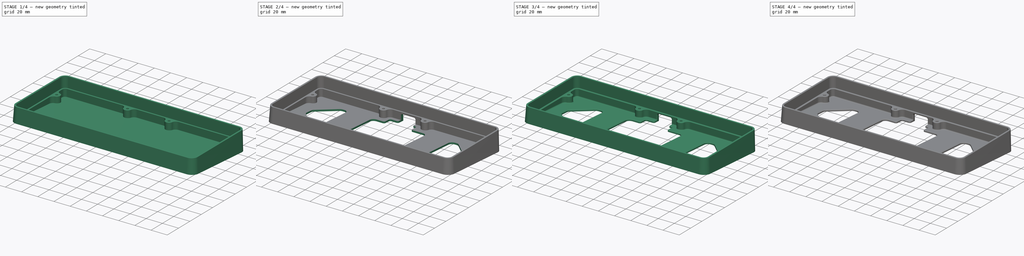
[diagram: build sequence overview — one tinted view per stage of 4, left to right]
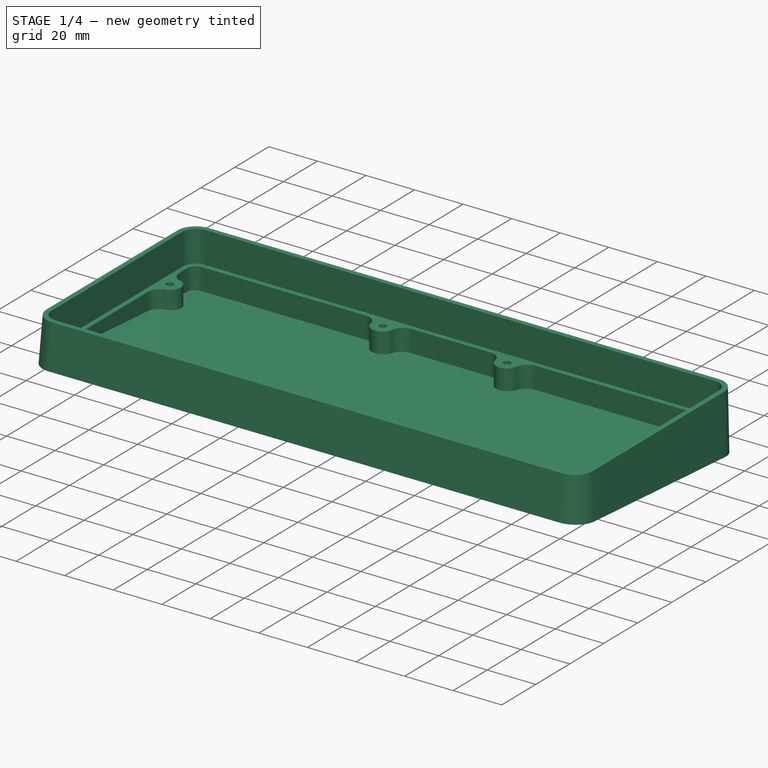
[diagram: stage 1 of 4 — iso view after this stage's code; geometry added in this stage tinted green]
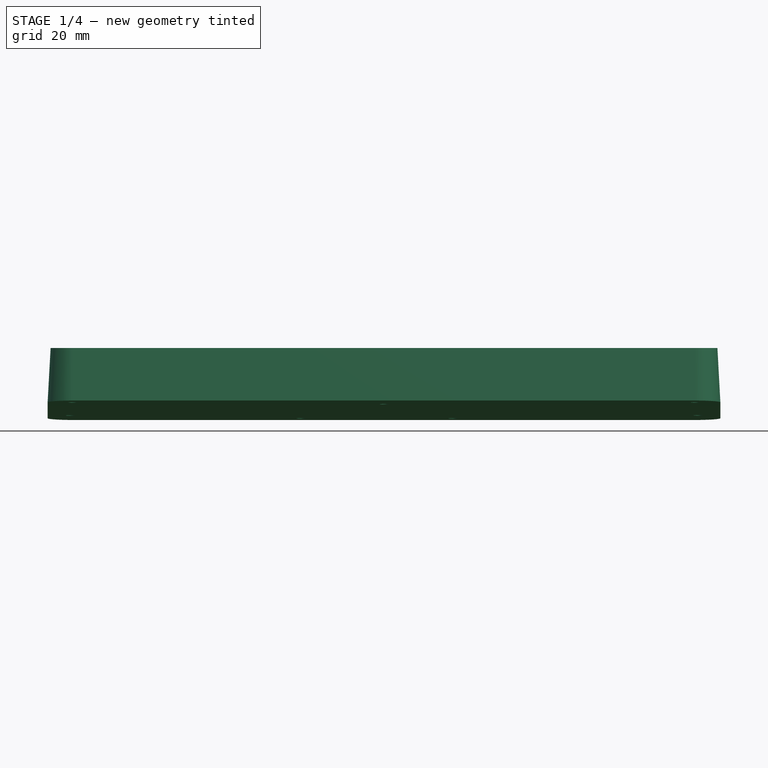
[diagram: stage 1 of 4 — front view after this stage's code; geometry added in this stage tinted green]
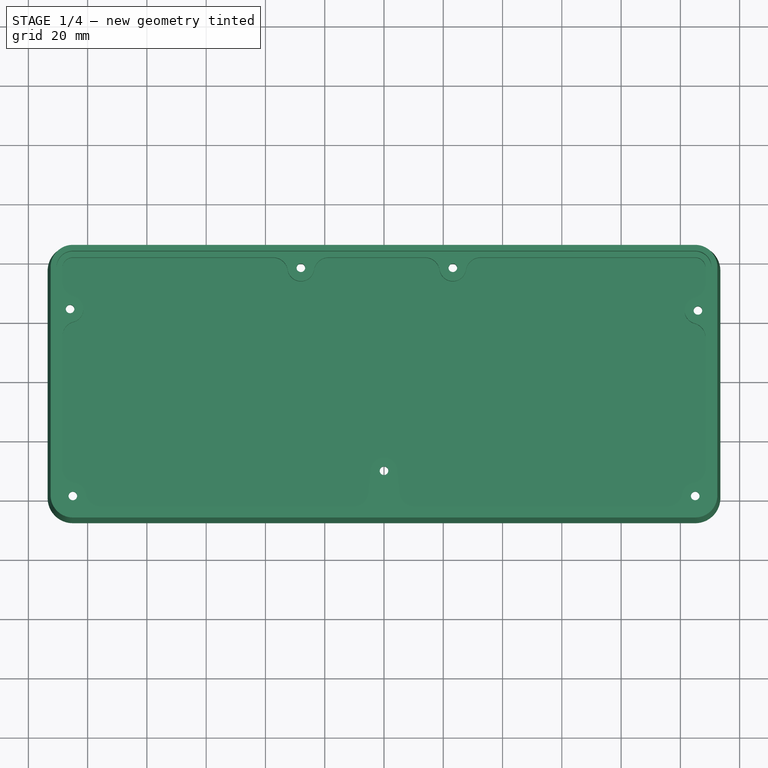
[diagram: stage 1 of 4 — top view after this stage's code; geometry added in this stage tinted green]
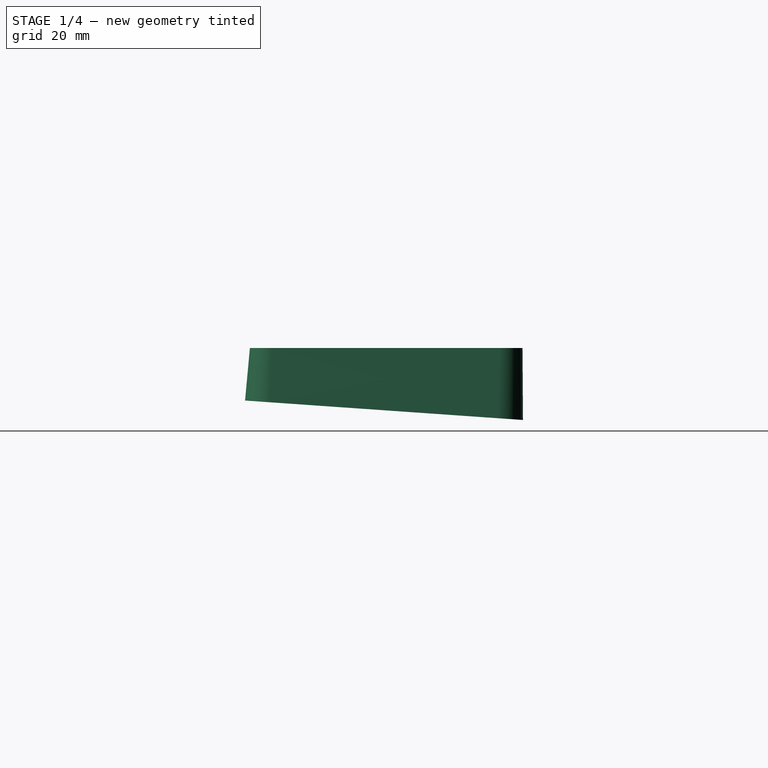
[diagram: stage 1 of 4 — right view after this stage's code; geometry added in this stage tinted green]
FCSTD DOCUMENT  (FreeCAD 0.20R)
Label: case
License: All rights reserved
LicenseURL: http://en.wikipedia.org/wiki/All_rights_reserved
objects: Sketcher::SketchObject×7, PartDesign::Fillet×7, PartDesign::Pocket×4, PartDesign::AdditiveLoft×1, PartDesign::Hole×1, PartDesign::Chamfer×1, PartDesign::Body×1
note: 36 computed .brp shape members not serialized (recipe doc carries the construction recipe); baked Part::Feature solids carry a one-line shape summary decoded from their .brp

FEATURE [Sketcher::SketchObject] Sketch
  AttachmentOffset = pos=(0,-0.75,0) rot=(1,0,0;-0.069813rad)
  FullyConstrained = false
  MapMode = 5
  Placement = pos=(0,-0.75,0) rot=(1,0,0;6.21337rad)
  Support = -> [XY_Plane]
  sketch-geometry (8):
    g0: LineSegment StartX=-105 StartY=47 StartZ=0 EndX=105 EndY=47 EndZ=0
    g1: ArcOfCircle CenterX=105 CenterY=38.5 CenterZ=0 NormalX=0 NormalY=0 NormalZ=1 AngleXU=0 Radius=8.5 StartAngle=0 EndAngle=1.5708
    g2: LineSegment StartX=113.5 StartY=38.5 StartZ=0 EndX=113.5 EndY=-38.5 EndZ=0
    g3: ArcOfCircle CenterX=105 CenterY=-38.5 CenterZ=0 NormalX=0 NormalY=0 NormalZ=1 AngleXU=0 Radius=8.5 StartAngle=4.71239 EndAngle=6.28319
    g4: LineSegment StartX=-105 StartY=-47 StartZ=0 EndX=105 EndY=-47 EndZ=0
    g5: ArcOfCircle CenterX=-105 CenterY=-38.5 CenterZ=0 NormalX=0 NormalY=0 NormalZ=1 AngleXU=0 Radius=8.5 StartAngle=3.14159 EndAngle=4.71239
    g6: LineSegment StartX=-113.5 StartY=38.5 StartZ=0 EndX=-113.5 EndY=-38.5 EndZ=0
    g7: ArcOfCircle CenterX=-105 CenterY=38.5 CenterZ=0 NormalX=0 NormalY=0 NormalZ=1 AngleXU=0 Radius=8.5 StartAngle=1.5708 EndAngle=3.14159
  constraints (8):
    c: Coincident(g5,g6)
    c: Coincident(g6,g7)
    c: Coincident(g4,g5)
    c: Coincident(g0,g7)
    c: Coincident(g3,g4)
    c: Coincident(g0,g1)
    c: Coincident(g2,g3)
    c: Coincident(g1,g2)
FEATURE [Sketcher::SketchObject] Sketch001
  AttachmentOffset = pos=(0,0,21) rot=(0,0,1;0rad)
  FullyConstrained = false
  MapMode = 5
  Placement = pos=(0,0,21) rot=(0,0,1;0rad)
  Support = -> [XY_Plane]
  sketch-geometry (8):
    g0: LineSegment StartX=-105 StartY=46 StartZ=0 EndX=105 EndY=46 EndZ=0
    g1: ArcOfCircle CenterX=-105 CenterY=38.5 CenterZ=0 NormalX=0 NormalY=0 NormalZ=1 AngleXU=0 Radius=7.5 StartAngle=1.5708 EndAngle=3.14159
    g2: LineSegment StartX=-112.5 StartY=38.5 StartZ=0 EndX=-112.5 EndY=-38.5 EndZ=0
    g3: ArcOfCircle CenterX=-105 CenterY=-38.5 CenterZ=0 NormalX=0 NormalY=0 NormalZ=1 AngleXU=0 Radius=7.5 StartAngle=3.14159 EndAngle=4.71239
    g4: LineSegment StartX=-105 StartY=-46 StartZ=0 EndX=105 EndY=-46 EndZ=0
    g5: ArcOfCircle CenterX=105 CenterY=-38.5 CenterZ=0 NormalX=0 NormalY=0 NormalZ=1 AngleXU=0 Radius=7.5 StartAngle=4.71239 EndAngle=6.28319
    g6: LineSegment StartX=112.5 StartY=38.5 StartZ=0 EndX=112.5 EndY=-38.5 EndZ=0
    g7: ArcOfCircle CenterX=105 CenterY=38.5 CenterZ=0 NormalX=0 NormalY=0 NormalZ=1 AngleXU=0 Radius=7.5 StartAngle=0 EndAngle=1.5708
  constraints (8):
    c: Coincident(g2,g3)
    c: Coincident(g1,g2)
    c: Coincident(g3,g4)
    c: Coincident(g0,g1)
    c: Coincident(g4,g5)
    c: Coincident(g0,g7)
    c: Coincident(g5,g6)
    c: Coincident(g6,g7)
FEATURE [PartDesign::AdditiveLoft] AdditiveLoft
  Closed = true
  Profile = -> Sketch
  Ruled = true
  Sections = -> [Sketch001]
FEATURE [Sketcher::SketchObject] Sketch002
  FullyConstrained = false
  MapMode = 5
  Placement = pos=(0,0,21) rot=(0,0,1;0rad)
  Support = -> [AdditiveLoft]
  sketch-geometry (8):
    g0: LineSegment StartX=-105 StartY=44 StartZ=0 EndX=105 EndY=44 EndZ=0
    g1: ArcOfCircle CenterX=105 CenterY=38.5 CenterZ=0 NormalX=0 NormalY=0 NormalZ=1 AngleXU=0 Radius=5.5 StartAngle=0 EndAngle=1.5708
    g2: LineSegment StartX=110.5 StartY=38.5 StartZ=0 EndX=110.5 EndY=-38.5 EndZ=0
    g3: ArcOfCircle CenterX=105 CenterY=-38.5 CenterZ=0 NormalX=0 NormalY=0 NormalZ=1 AngleXU=0 Radius=5.5 StartAngle=4.71239 EndAngle=6.28319
    g4: LineSegment StartX=-105 StartY=-44 StartZ=0 EndX=105 EndY=-44 EndZ=0
    g5: ArcOfCircle CenterX=-105 CenterY=-38.5 CenterZ=0 NormalX=0 NormalY=0 NormalZ=1 AngleXU=0 Radius=5.5 StartAngle=3.14159 EndAngle=4.71239
    g6: LineSegment StartX=-110.5 StartY=38.5 StartZ=0 EndX=-110.5 EndY=-38.5 EndZ=0
    g7: ArcOfCircle CenterX=-105 CenterY=38.5 CenterZ=0 NormalX=0 NormalY=0 NormalZ=1 AngleXU=0 Radius=5.5 StartAngle=1.5708 EndAngle=3.14159
  constraints (8):
    c: Coincident(g5,g6)
    c: Coincident(g6,g7)
    c: Coincident(g4,g5)
    c: Coincident(g0,g7)
    c: Coincident(g3,g4)
    c: Coincident(g0,g1)
    c: Coincident(g2,g3)
    c: Coincident(g1,g2)
FEATURE [PartDesign::Pocket] Pocket
  BaseFeature = -> AdditiveLoft
  Direction = (0,0,-1)
  Length = 13
  Length2 = 5
  Profile = -> Sketch002
  ReferenceAxis = -> Sketch002 [N_Axis]
  Type = 0
FEATURE [Sketcher::SketchObject] Sketch003
  FullyConstrained = false
  MapMode = 5
  Placement = pos=(0,0,8) rot=(0,0,1;0rad)
  Support = -> [Pocket]
  sketch-geometry (34):
    g0: ArcOfCircle CenterX=-105 CenterY=38.5 CenterZ=0 NormalX=0 NormalY=0 NormalZ=1 AngleXU=0 Radius=3.5 StartAngle=1.5708 EndAngle=3.14159
    g1: ArcOfCircle CenterX=105 CenterY=38.5 CenterZ=0 NormalX=0 NormalY=0 NormalZ=1 AngleXU=0 Radius=3.5 StartAngle=0 EndAngle=1.5708
    g2: ArcOfCircle CenterX=-18.6668 CenterY=37 CenterZ=0 NormalX=0 NormalY=0 NormalZ=1 AngleXU=0 Radius=5 StartAngle=1.5708 EndAngle=2.98303
    g3: LineSegment StartX=-105 StartY=42 StartZ=0 EndX=-37.4285 EndY=42 EndZ=0
    g4: ArcOfCircle CenterX=-28.0476 CenterY=38.5 CenterZ=0 NormalX=0 NormalY=0 NormalZ=1 AngleXU=0 Radius=4.5 StartAngle=3.30015 EndAngle=6.12463
    g5: ArcOfCircle CenterX=-37.4285 CenterY=37 CenterZ=0 NormalX=0 NormalY=0 NormalZ=1 AngleXU=0 Radius=5 StartAngle=0.158558 EndAngle=1.5708
    g6: LineSegment StartX=32.6001 StartY=42 StartZ=0 EndX=105 EndY=42 EndZ=0
    g7: ArcOfCircle CenterX=32.6001 CenterY=37 CenterZ=0 NormalX=0 NormalY=0 NormalZ=1 AngleXU=0 Radius=5 StartAngle=1.5708 EndAngle=2.98303
    g8: ArcOfCircle CenterX=23.2193 CenterY=38.5 CenterZ=0 NormalX=0 NormalY=0 NormalZ=1 AngleXU=0 Radius=4.5 StartAngle=3.30015 EndAngle=6.12463
    g9: LineSegment StartX=-18.6668 StartY=42 StartZ=0 EndX=13.8384 EndY=42 EndZ=0
    g10: ArcOfCircle CenterX=13.8384 CenterY=37 CenterZ=0 NormalX=0 NormalY=0 NormalZ=1 AngleXU=0 Radius=5 StartAngle=0.158558 EndAngle=1.5708
    g11: LineSegment StartX=108.5 StartY=38.5 StartZ=0 EndX=108.5 EndY=33.2941 EndZ=0
    g12: ArcOfCircle CenterX=103.5 CenterY=33.2941 CenterZ=0 NormalX=0 NormalY=0 NormalZ=1 AngleXU=0 Radius=5 StartAngle=4.97068 EndAngle=6.28319
    g13: ArcOfCircle CenterX=105.927 CenterY=24.1093 CenterZ=0 NormalX=0 NormalY=0 NormalZ=1 AngleXU=0 Radius=4.5 StartAngle=1.82909 EndAngle=4.4541
    g14: ArcOfCircle CenterX=103.5 CenterY=14.9244 CenterZ=0 NormalX=0 NormalY=0 NormalZ=1 AngleXU=0 Radius=5 StartAngle=0 EndAngle=1.3125
    g15: ArcOfCircle CenterX=95.6192 CenterY=-37 CenterZ=0 NormalX=0 NormalY=0 NormalZ=1 AngleXU=0 Radius=5 StartAngle=4.71239 EndAngle=6.12463
    g16: ArcOfCircle CenterX=105 CenterY=-38.5 CenterZ=0 NormalX=0 NormalY=0 NormalZ=1 AngleXU=0 Radius=4.5 StartAngle=1.72935 EndAngle=2.98303
    g17: LineSegment StartX=108.5 StartY=14.9244 StartZ=0 EndX=108.5 EndY=-29.1192 EndZ=0
    g18: ArcOfCircle CenterX=103.5 CenterY=-29.1192 CenterZ=0 NormalX=0 NormalY=0 NormalZ=1 AngleXU=0 Radius=5 StartAngle=4.87095 EndAngle=6.28319
    g19: ArcOfCircle CenterX=-95.6192 CenterY=-37 CenterZ=0 NormalX=0 NormalY=0 NormalZ=1 AngleXU=0 Radius=5 StartAngle=3.30015 EndAngle=4.71239
    g20: ArcOfCircle CenterX=-105 CenterY=-38.5 CenterZ=0 NormalX=0 NormalY=0 NormalZ=1 AngleXU=0 Radius=4.5 StartAngle=0.158558 EndAngle=1.41224
    g21: ArcOfCircle CenterX=-103.5 CenterY=-29.1192 CenterZ=0 NormalX=0 NormalY=0 NormalZ=1 AngleXU=0 Radius=5 StartAngle=3.14159 EndAngle=4.55383
    g22: LineSegment StartX=-108.5 StartY=38.5 StartZ=0 EndX=-108.5 EndY=33.7906 EndZ=0
    g23: ArcOfCircle CenterX=-103.5 CenterY=33.7906 CenterZ=0 NormalX=0 NormalY=0 NormalZ=1 AngleXU=0 Radius=5 StartAngle=3.14159 EndAngle=4.4541
    g24: ArcOfCircle CenterX=-105.927 CenterY=24.6058 CenterZ=0 NormalX=0 NormalY=0 NormalZ=1 AngleXU=0 Radius=4.5 StartAngle=4.97068 EndAngle=7.59569
    g25: LineSegment StartX=-108.5 StartY=15.4209 StartZ=0 EndX=-108.5 EndY=-29.1192 EndZ=0
    g26: ArcOfCircle CenterX=-103.5 CenterY=15.4209 CenterZ=0 NormalX=0 NormalY=0 NormalZ=1 AngleXU=0 Radius=5 StartAngle=1.82909 EndAngle=3.14159
    g27: LineSegment StartX=10.2881 StartY=-42 StartZ=0 EndX=95.6192 EndY=-42 EndZ=0
    g28: ArcOfCircle CenterX=10.2881 CenterY=-37 CenterZ=0 NormalX=0 NormalY=0 NormalZ=1 AngleXU=0 Radius=5 StartAngle=3.24631 EndAngle=4.71239
    g29: LineSegment StartX=-95.6192 StartY=-42 StartZ=0 EndX=-10.2881 EndY=-42 EndZ=0
    g30: ArcOfCircle CenterX=-10.2881 CenterY=-37 CenterZ=0 NormalX=0 NormalY=0 NormalZ=1 AngleXU=0 Radius=5 StartAngle=4.71239 EndAngle=6.17847
    g31: ArcOfCircle CenterX=-3e-16 CenterY=-30 CenterZ=0 NormalX=0 NormalY=0 NormalZ=1 AngleXU=0 Radius=4.5 StartAngle=0.10472 EndAngle=3.03687
    g32: LineSegment StartX=-4.47535 StartY=-29.5296 StartZ=0 EndX=-5.31545 EndY=-37.5226 EndZ=0
    g33: LineSegment StartX=4.47535 StartY=-29.5296 StartZ=0 EndX=5.31545 EndY=-37.5226 EndZ=0
  constraints (34):
    c: Coincident(g21,g25)
    c: Coincident(g25,g26)
    c: Coincident(g22,g23)
    c: Coincident(g0,g22)
    c: Coincident(g0,g3)
    c: Coincident(g24,g26)
    c: Coincident(g23,g24)
    c: Coincident(g20,g21)
    c: Coincident(g19,g20)
    c: Coincident(g19,g29)
    c: Coincident(g3,g5)
    c: Coincident(g4,g5)
    c: Coincident(g2,g4)
    c: Coincident(g2,g9)
    c: Coincident(g29,g30)
    c: Coincident(g30,g32)
    c: Coincident(g31,g32)
    c: Coincident(g31,g33)
    c: Coincident(g28,g33)
    c: Coincident(g27,g28)
    c: Coincident(g9,g10)
    c: Coincident(g8,g10)
    c: Coincident(g7,g8)
    c: Coincident(g6,g7)
    c: Coincident(g15,g27)
    c: Coincident(g15,g16)
    c: Coincident(g16,g18)
    c: Coincident(g13,g14)
    c: Coincident(g12,g13)
    c: Coincident(g1,g6)
    c: Coincident(g17,g18)
    c: Coincident(g14,g17)
    c: Coincident(g11,g12)
    c: Coincident(g1,g11)
FEATURE [PartDesign::Pocket] Pocket001
  BaseFeature = -> Pocket
  Direction = (0,0,-1)
  Length = 0
  Length2 = 5
  Offset = -2
  Profile = -> Sketch003
  ReferenceAxis = -> Sketch003 [N_Axis]
  Type = 3
  UpToFace = -> Pocket [Face1]
FEATURE [Sketcher::SketchObject] Sketch004
  FullyConstrained = false
  MapMode = 5
  Placement = pos=(0,0,8) rot=(0,0,1;0rad)
  Support = -> [Pocket]
  sketch-geometry (7):
    g0: Circle CenterX=-105 CenterY=-38.5 CenterZ=0 NormalX=0 NormalY=0 NormalZ=-1 AngleXU=0 Radius=1.5
    g1: Circle CenterX=105 CenterY=-38.5 CenterZ=0 NormalX=0 NormalY=0 NormalZ=-1 AngleXU=0 Radius=1.5
    g2: Circle CenterX=-28.0476 CenterY=38.5 CenterZ=0 NormalX=0 NormalY=0 NormalZ=-1 AngleXU=0 Radius=1.5
    g3: Circle CenterX=23.2193 CenterY=38.5 CenterZ=0 NormalX=0 NormalY=0 NormalZ=-1 AngleXU=0 Radius=1.5
    g4: Circle CenterX=-105.927 CenterY=24.6058 CenterZ=0 NormalX=0 NormalY=0 NormalZ=-1 AngleXU=0 Radius=1.5
    g5: Circle CenterX=105.927 CenterY=24.1093 CenterZ=0 NormalX=0 NormalY=0 NormalZ=-1 AngleXU=0 Radius=1.5
    g6: Circle CenterX=0 CenterY=-30 CenterZ=0 NormalX=0 NormalY=0 NormalZ=-1 AngleXU=0 Radius=1.5
FEATURE [PartDesign::Hole] Hole
  BaseFeature = -> Pocket001
  CustomThreadClearance = 0
  Depth = 25
  DepthType = 0
  Diameter = 2.9
  DrillForDepth = false
  DrillPoint = 1
  DrillPointAngle = 118
  HoleCutCountersinkAngle = 90
  HoleCutCustomValues = false
  HoleCutDepth = 0
  HoleCutDiameter = 6.1
  HoleCutType = 0
  ModelThread = false
  Profile = -> Sketch004
  Tapered = false
  TaperedAngle = 90
  ThreadClass = 0
  ThreadDepth = 25
  ThreadDepthType = 0
  ThreadDirection = 0
  ThreadFit = 0
  ThreadSize = 8
  ThreadType = 1
  Threaded = false
  UseCustomThreadClearance = false
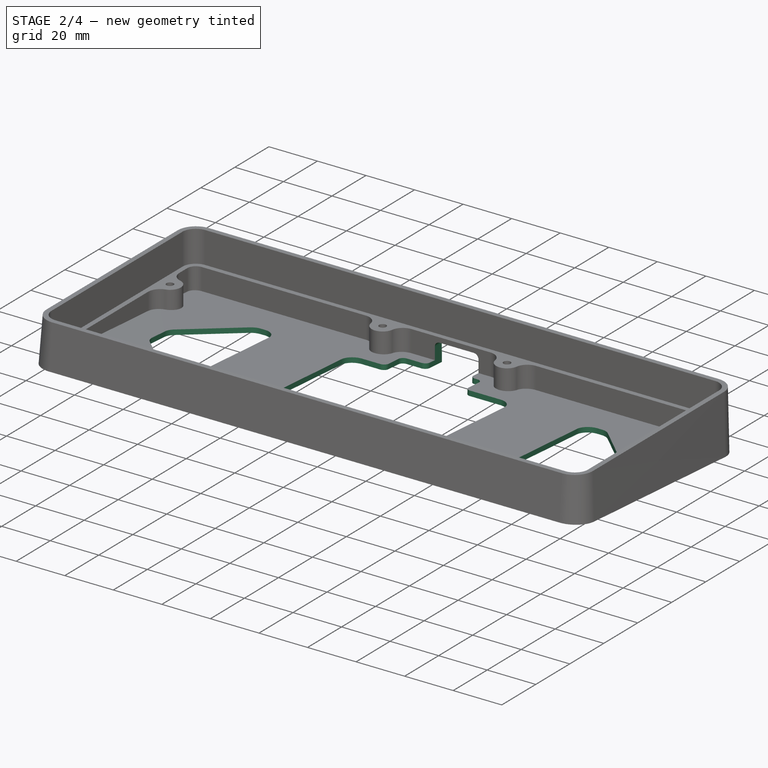
[diagram: stage 2 of 4 — iso view after this stage's code; geometry added in this stage tinted green]
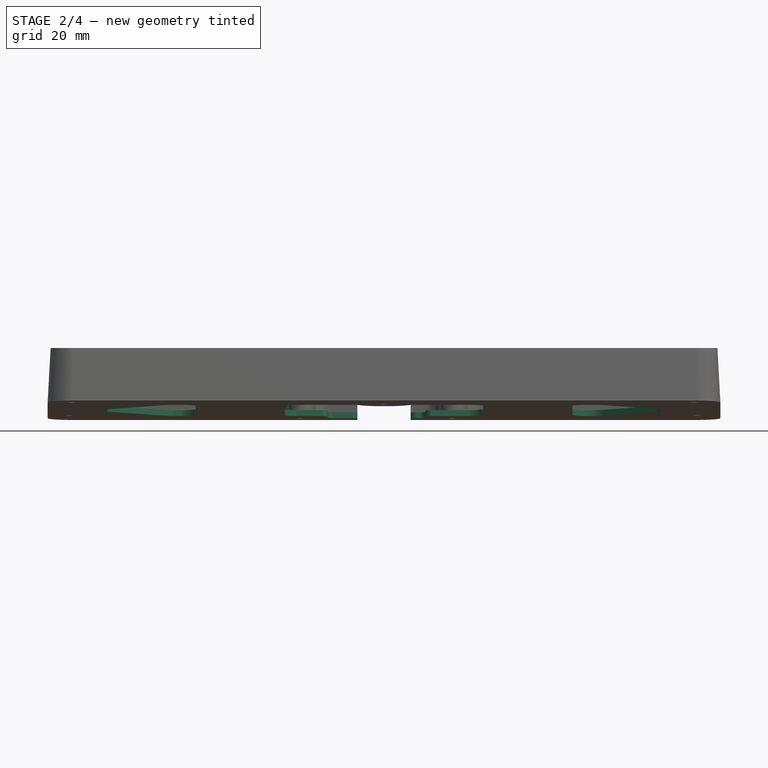
[diagram: stage 2 of 4 — front view after this stage's code; geometry added in this stage tinted green]
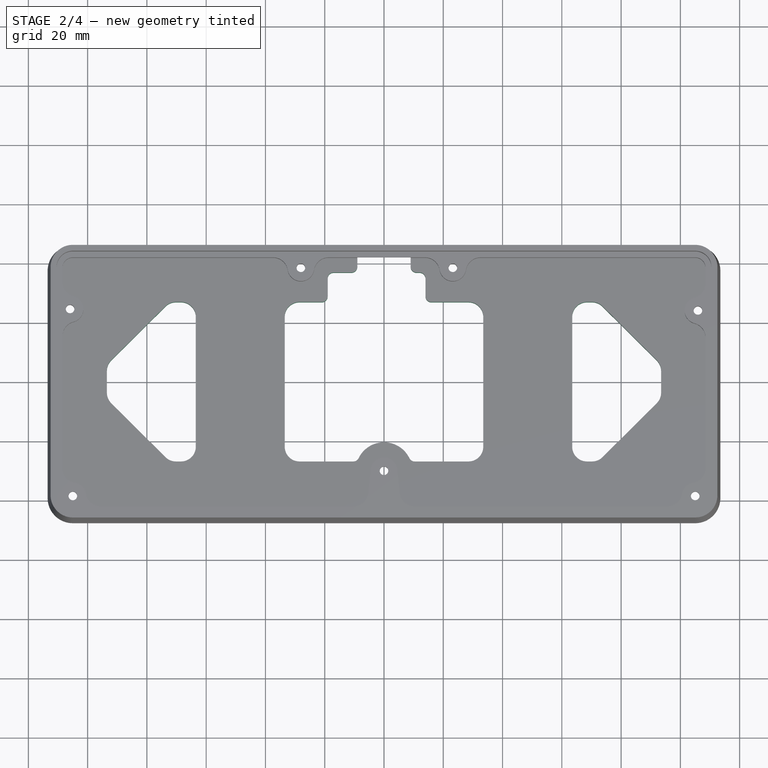
[diagram: stage 2 of 4 — top view after this stage's code; geometry added in this stage tinted green]
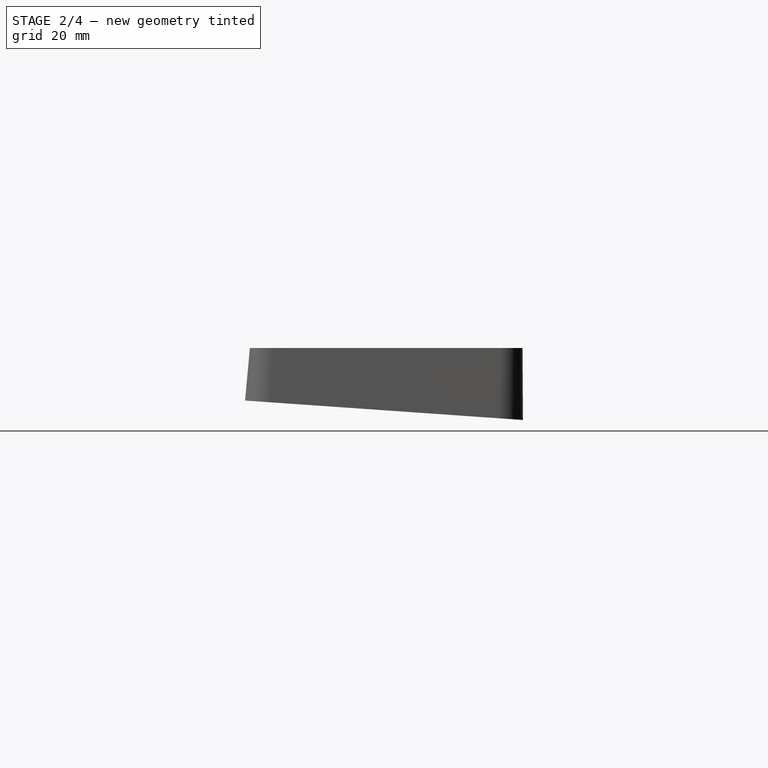
[diagram: stage 2 of 4 — right view after this stage's code; geometry added in this stage tinted green]
FEATURE [Sketcher::SketchObject] Sketch005
  FullyConstrained = false
  MapMode = 5
  Placement = pos=(0,-0.00364947,-0.0521899) rot=(1,0,0;3.07178rad)
  Support = -> [Pocket]
  sketch-geometry (4):
    g0: LineSegment StartX=9 StartY=-17.2928 StartZ=0 EndX=9 EndY=-57.2928 EndZ=0
    g1: LineSegment StartX=-9 StartY=-57.2928 StartZ=0 EndX=9 EndY=-57.2928 EndZ=0
    g2: LineSegment StartX=-9 StartY=-17.2928 StartZ=0 EndX=9 EndY=-17.2928 EndZ=0
    g3: LineSegment StartX=-9 StartY=-57.2928 StartZ=0 EndX=-9 EndY=-17.2928 EndZ=0
  constraints (4):
    c: Coincident(g1,g3)
    c: Coincident(g2,g3)
    c: Coincident(g0,g1)
    c: Coincident(g0,g2)
FEATURE [PartDesign::Pocket] Pocket002
  BaseFeature = -> Hole
  Direction = (0,0.0697565,0.997564)
  Length = 0
  Length2 = 5
  Offset = -2
  Profile = -> Sketch005
  ReferenceAxis = -> Sketch005 [N_Axis]
  Type = 3
  UpToFace = -> Hole [Face18]
FEATURE [Sketcher::SketchObject] Sketch006
  FullyConstrained = false
  MapMode = 5
  Placement = pos=(0,0.135524,1.93808) rot=(-1,0,0;0.069813rad)
  Support = -> [Pocket001]
  sketch-geometry (44):
    g0: ArcOfCircle CenterX=-68.5 CenterY=22 CenterZ=0 NormalX=0 NormalY=0 NormalZ=1 AngleXU=0 Radius=5 StartAngle=0 EndAngle=1.5708
    g1: LineSegment StartX=-70.2157 StartY=27 StartZ=0 EndX=-68.5 EndY=27 EndZ=0
    g2: ArcOfCircle CenterX=-70.2157 CenterY=22 CenterZ=0 NormalX=0 NormalY=0 NormalZ=1 AngleXU=0 Radius=5 StartAngle=1.5708 EndAngle=2.35619
    g3: LineSegment StartX=-73.7513 StartY=25.5355 StartZ=0 EndX=-92.0355 EndY=7.25126 EndZ=0
    g4: ArcOfCircle CenterX=-88.5 CenterY=3.71573 CenterZ=0 NormalX=0 NormalY=0 NormalZ=1 AngleXU=0 Radius=5 StartAngle=2.35619 EndAngle=3.14159
    g5: LineSegment StartX=-93.5 StartY=3.71573 StartZ=0 EndX=-93.5 EndY=-3.71573 EndZ=0
    g6: ArcOfCircle CenterX=-88.5 CenterY=-3.71573 CenterZ=0 NormalX=0 NormalY=0 NormalZ=1 AngleXU=0 Radius=5 StartAngle=3.14159 EndAngle=3.92699
    g7: LineSegment StartX=-73.7513 StartY=-25.5355 StartZ=0 EndX=-92.0355 EndY=-7.25126 EndZ=0
    g8: ArcOfCircle CenterX=-70.2157 CenterY=-22 CenterZ=0 NormalX=0 NormalY=0 NormalZ=1 AngleXU=0 Radius=5 StartAngle=3.92699 EndAngle=4.71239
    g9: LineSegment StartX=-70.2157 StartY=-27 StartZ=0 EndX=-68.5 EndY=-27 EndZ=0
    g10: LineSegment StartX=-63.5 StartY=22 StartZ=0 EndX=-63.5 EndY=-22 EndZ=0
    g11: ArcOfCircle CenterX=-68.5 CenterY=-22 CenterZ=0 NormalX=0 NormalY=0 NormalZ=1 AngleXU=0 Radius=5 StartAngle=4.71239 EndAngle=6.28319
    g12: ArcOfCircle CenterX=-28.5 CenterY=22 CenterZ=0 NormalX=0 NormalY=0 NormalZ=1 AngleXU=0 Radius=5 StartAngle=1.5708 EndAngle=3.14159
    g13: LineSegment StartX=-33.5 StartY=22 StartZ=0 EndX=-33.5 EndY=-22 EndZ=0
    g14: ArcOfCircle CenterX=-28.5 CenterY=-22 CenterZ=0 NormalX=0 NormalY=0 NormalZ=1 AngleXU=0 Radius=5 StartAngle=3.14159 EndAngle=4.71239
    g15: ArcOfCircle CenterX=28.5 CenterY=-22 CenterZ=0 NormalX=0 NormalY=0 NormalZ=1 AngleXU=0 Radius=5 StartAngle=4.71239 EndAngle=6.28319
    g16: LineSegment StartX=33.5 StartY=22 StartZ=0 EndX=33.5 EndY=-22 EndZ=0
    g17: ArcOfCircle CenterX=28.5 CenterY=22 CenterZ=0 NormalX=0 NormalY=0 NormalZ=1 AngleXU=0 Radius=5 StartAngle=0 EndAngle=1.5708
    g18: ArcOfCircle CenterX=68.5 CenterY=22 CenterZ=0 NormalX=0 NormalY=0 NormalZ=1 AngleXU=0 Radius=5 StartAngle=1.5708 EndAngle=3.14159
    g19: LineSegment StartX=68.5 StartY=27 StartZ=0 EndX=70.2157 EndY=27 EndZ=0
    g20: ArcOfCircle CenterX=70.2157 CenterY=22 CenterZ=0 NormalX=0 NormalY=0 NormalZ=1 AngleXU=0 Radius=5 StartAngle=0.785398 EndAngle=1.5708
    g21: LineSegment StartX=92.0355 StartY=7.25126 StartZ=0 EndX=73.7513 EndY=25.5355 EndZ=0
    g22: ArcOfCircle CenterX=88.5 CenterY=3.71573 CenterZ=0 NormalX=0 NormalY=0 NormalZ=1 AngleXU=0 Radius=5 StartAngle=0 EndAngle=0.785398
    g23: LineSegment StartX=93.5 StartY=3.71573 StartZ=0 EndX=93.5 EndY=-3.71573 EndZ=0
    g24: ArcOfCircle CenterX=88.5 CenterY=-3.71573 CenterZ=0 NormalX=0 NormalY=0 NormalZ=1 AngleXU=0 Radius=5 StartAngle=5.49779 EndAngle=6.28319
    g25: LineSegment StartX=63.5 StartY=22 StartZ=0 EndX=63.5 EndY=-22 EndZ=0
    g26: ArcOfCircle CenterX=68.5 CenterY=-22 CenterZ=0 NormalX=0 NormalY=0 NormalZ=1 AngleXU=0 Radius=5 StartAngle=3.14159 EndAngle=4.71239
    g27: LineSegment StartX=92.0355 StartY=-7.25126 StartZ=0 EndX=73.7513 EndY=-25.5355 EndZ=0
    g28: LineSegment StartX=68.5 StartY=-27 StartZ=0 EndX=70.2157 EndY=-27 EndZ=0
    g29: ArcOfCircle CenterX=70.2157 CenterY=-22 CenterZ=0 NormalX=0 NormalY=0 NormalZ=1 AngleXU=0 Radius=5 StartAngle=4.71239 EndAngle=5.49779
    g30: ArcOfCircle CenterX=12 CenterY=35 CenterZ=0 NormalX=0 NormalY=0 NormalZ=1 AngleXU=0 Radius=2 StartAngle=0 EndAngle=1.5708
    g31: LineSegment StartX=14 StartY=35 StartZ=0 EndX=14 EndY=29 EndZ=0
    g32: LineSegment StartX=16 StartY=27 StartZ=0 EndX=28.5 EndY=27 EndZ=0
    g33: ArcOfCircle CenterX=16 CenterY=29 CenterZ=0 NormalX=0 NormalY=0 NormalZ=1 AngleXU=0 Radius=2 StartAngle=3.14159 EndAngle=4.71239
    g34: LineSegment StartX=-17 StartY=37 StartZ=0 EndX=12 EndY=37 EndZ=0
    g35: ArcOfCircle CenterX=-17 CenterY=35 CenterZ=0 NormalX=0 NormalY=0 NormalZ=1 AngleXU=0 Radius=2 StartAngle=1.5708 EndAngle=3.14159
    g36: LineSegment StartX=-28.5 StartY=27 StartZ=0 EndX=-21 EndY=27 EndZ=0
    g37: LineSegment StartX=-19 StartY=29 StartZ=0 EndX=-19 EndY=35 EndZ=0
    g38: ArcOfCircle CenterX=-21 CenterY=29 CenterZ=0 NormalX=0 NormalY=0 NormalZ=1 AngleXU=0 Radius=2 StartAngle=4.71239 EndAngle=6.28319
    g39: LineSegment StartX=10.3562 StartY=-27 StartZ=0 EndX=28.5 EndY=-27 EndZ=0
    g40: ArcOfCircle CenterX=10.3562 CenterY=-25 CenterZ=0 NormalX=0 NormalY=0 NormalZ=1 AngleXU=0 Radius=2 StartAngle=3.59139 EndAngle=4.71239
    g41: LineSegment StartX=-28.5 StartY=-27 StartZ=0 EndX=-10.3562 EndY=-27 EndZ=0
    g42: ArcOfCircle CenterX=-3e-16 CenterY=-30 CenterZ=0 NormalX=0 NormalY=0 NormalZ=1 AngleXU=0 Radius=9.5 StartAngle=0.449797 EndAngle=2.6918
    g43: ArcOfCircle CenterX=-10.3562 CenterY=-25 CenterZ=0 NormalX=0 NormalY=0 NormalZ=1 AngleXU=0 Radius=2 StartAngle=4.71239 EndAngle=5.83339
  constraints (44):
    c: Coincident(g5,g6)
    c: Coincident(g4,g5)
    c: Coincident(g6,g7)
    c: Coincident(g3,g4)
    c: Coincident(g7,g8)
    c: Coincident(g2,g3)
    c: Coincident(g8,g9)
    c: Coincident(g1,g2)
    c: Coincident(g9,g11)
    c: Coincident(g0,g1)
    c: Coincident(g10,g11)
    c: Coincident(g0,g10)
    c: Coincident(g13,g14)
    c: Coincident(g12,g13)
    c: Coincident(g14,g41)
    c: Coincident(g12,g36)
    c: Coincident(g36,g38)
    c: Coincident(g37,g38)
    c: Coincident(g35,g37)
    c: Coincident(g34,g35)
    c: Coincident(g41,g43)
    c: Coincident(g42,g43)
    c: Coincident(g40,g42)
    c: Coincident(g39,g40)
    c: Coincident(g30,g34)
    c: Coincident(g31,g33)
    c: Coincident(g30,g31)
    c: Coincident(g32,g33)
    c: Coincident(g15,g39)
    c: Coincident(g17,g32)
    c: Coincident(g15,g16)
    c: Coincident(g16,g17)
    c: Coincident(g25,g26)
    c: Coincident(g18,g25)
    c: Coincident(g26,g28)
    c: Coincident(g18,g19)
    c: Coincident(g28,g29)
    c: Coincident(g19,g20)
    c: Coincident(g27,g29)
    c: Coincident(g20,g21)
    c: Coincident(g24,g27)
    c: Coincident(g21,g22)
    c: Coincident(g23,g24)
    c: Coincident(g22,g23)
FEATURE [PartDesign::Pocket] Pocket003
  BaseFeature = -> Pocket002
  Direction = (0,-0.0697565,-0.997564)
  Length = 5
  Length2 = 5
  Profile = -> Sketch006
  ReferenceAxis = -> Sketch006 [N_Axis]
  Type = 1
FEATURE [PartDesign::Fillet] Fillet
  Base = -> Pocket003 [Edge73,Edge116,Edge115,Edge70]
  BaseFeature = -> Pocket003
  Radius = 2
  SupportTransform = false
  UseAllEdges = false
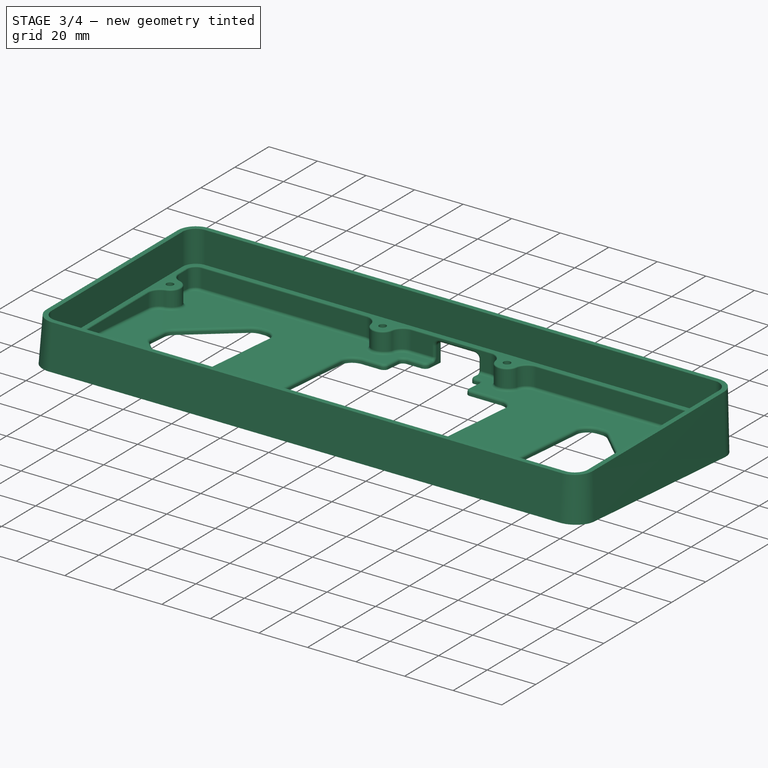
[diagram: stage 3 of 4 — iso view after this stage's code; geometry added in this stage tinted green]
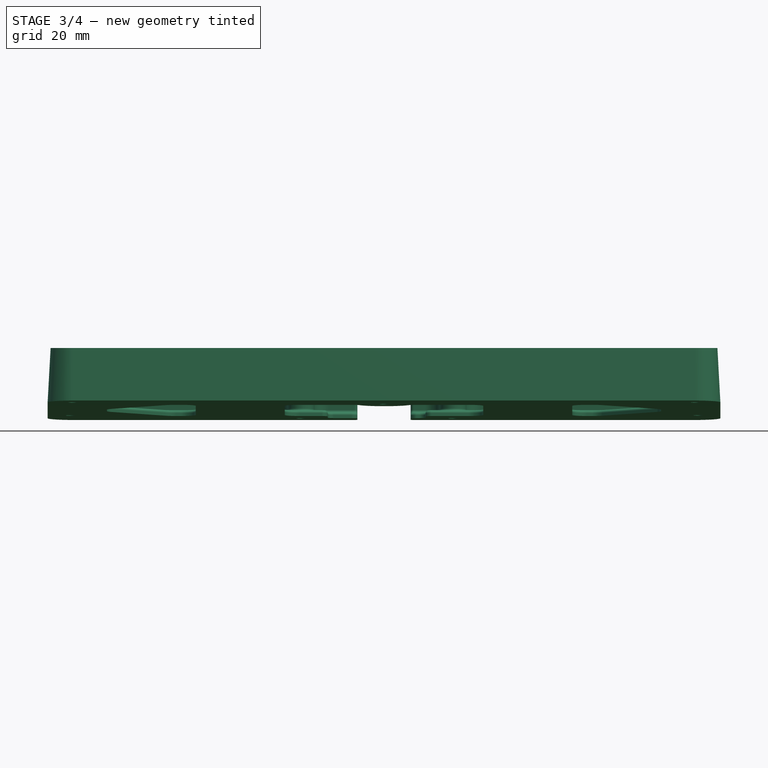
[diagram: stage 3 of 4 — front view after this stage's code; geometry added in this stage tinted green]
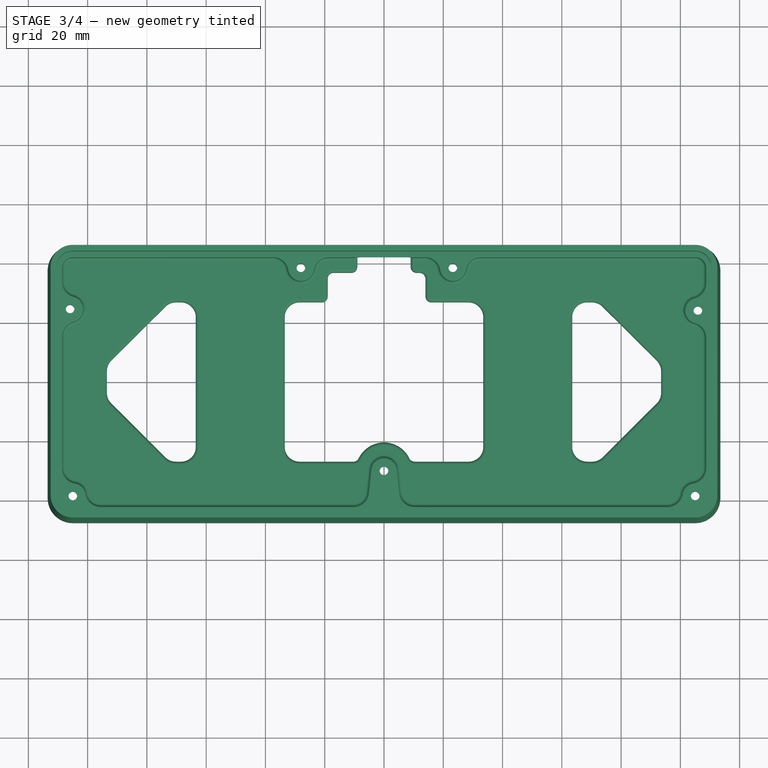
[diagram: stage 3 of 4 — top view after this stage's code; geometry added in this stage tinted green]
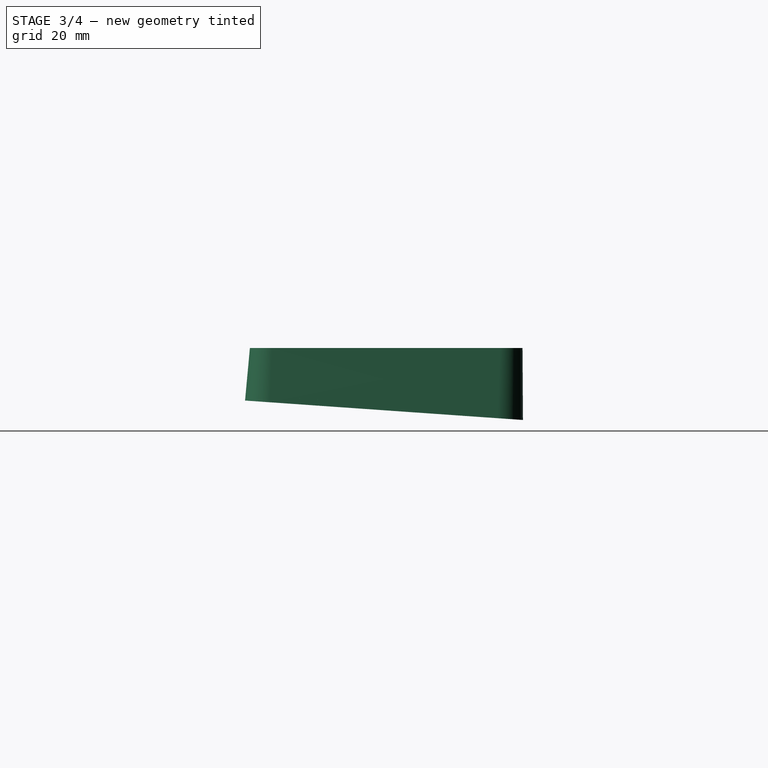
[diagram: stage 3 of 4 — right view after this stage's code; geometry added in this stage tinted green]
FEATURE [PartDesign::Fillet] Fillet001
  Base = -> Fillet [Face66,Edge70]
  BaseFeature = -> Fillet
  Radius = 1
  SupportTransform = false
  UseAllEdges = false
FEATURE [PartDesign::Fillet] Fillet002
  Base = -> Fillet001 [Edge444]
  BaseFeature = -> Fillet001
  Radius = 0.5
  SupportTransform = false
  UseAllEdges = false
FEATURE [PartDesign::Fillet] Fillet003
  Base = -> Fillet002 [Edge193]
  BaseFeature = -> Fillet002
  Radius = 1
  SupportTransform = false
  UseAllEdges = false
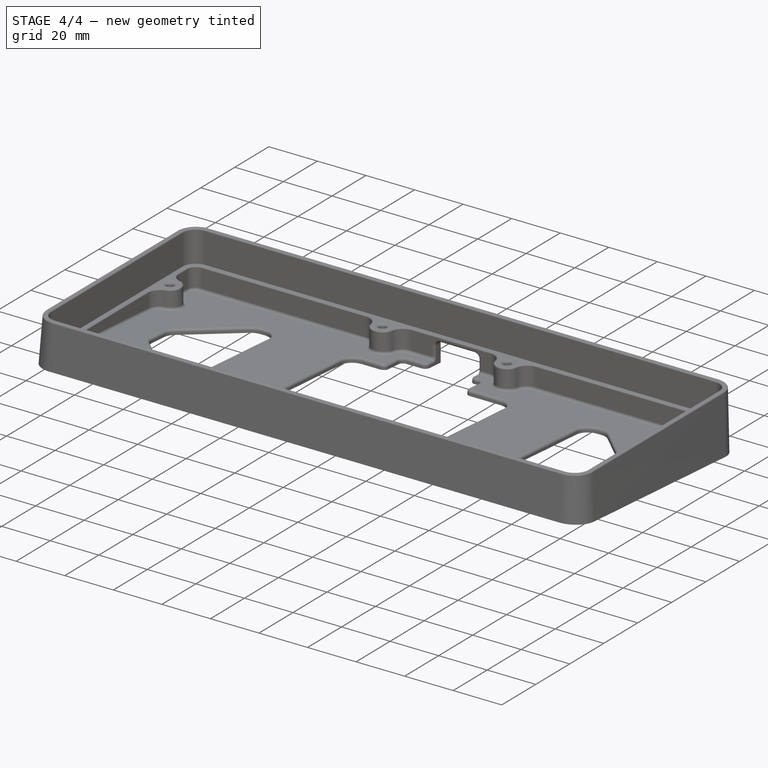
[diagram: stage 4 of 4 — iso view after this stage's code; geometry added in this stage tinted green]
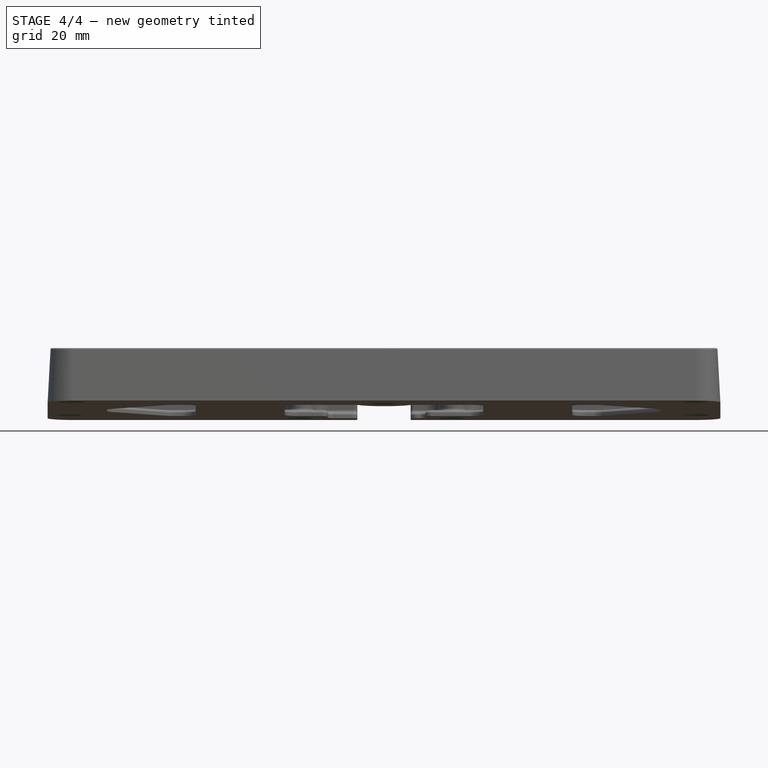
[diagram: stage 4 of 4 — front view after this stage's code; geometry added in this stage tinted green]
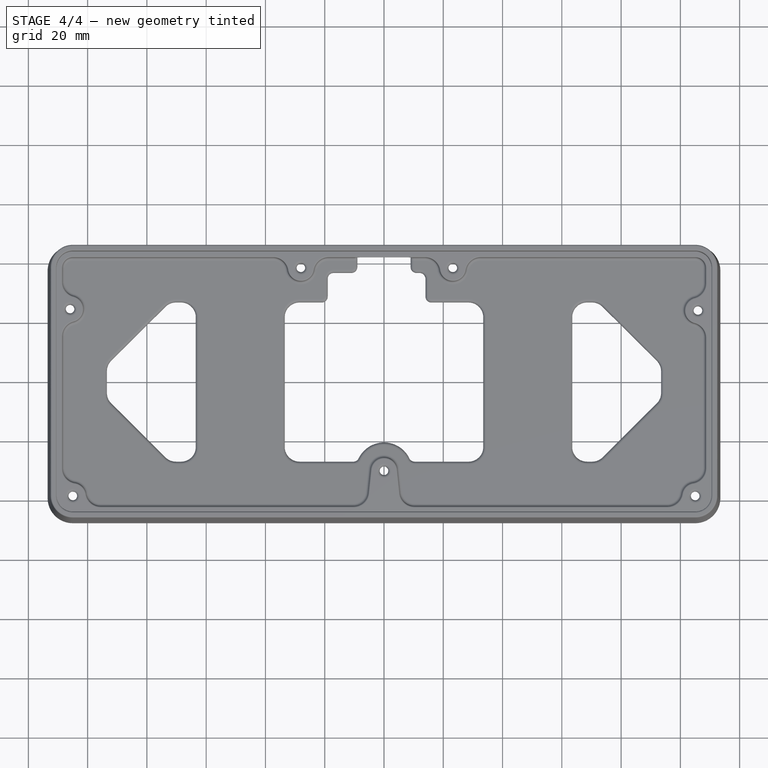
[diagram: stage 4 of 4 — top view after this stage's code; geometry added in this stage tinted green]
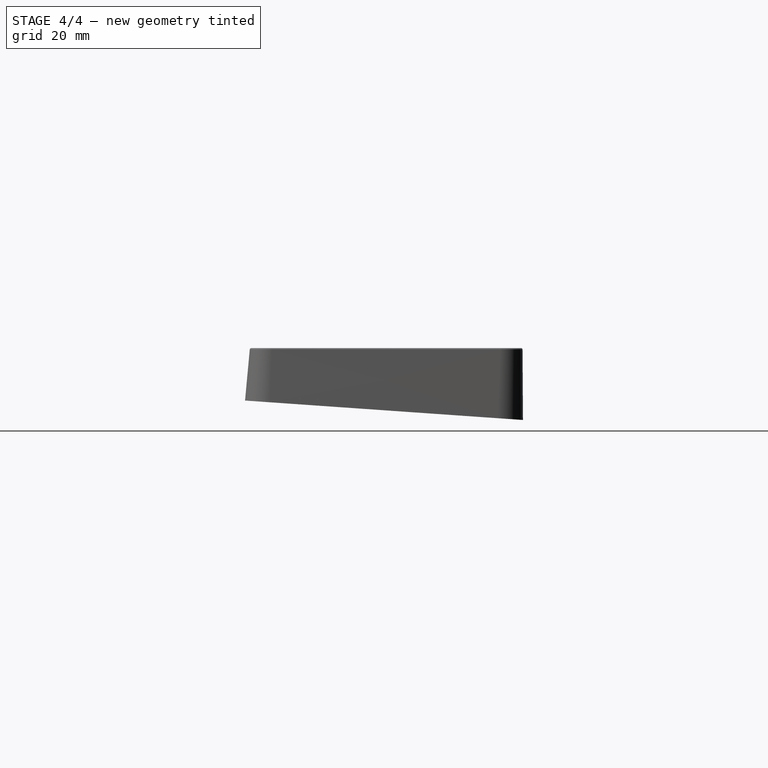
[diagram: stage 4 of 4 — right view after this stage's code; geometry added in this stage tinted green]
FEATURE [PartDesign::Fillet] Fillet004
  Base = -> Fillet003 [Face85]
  BaseFeature = -> Fillet003
  Radius = 0.5
  SupportTransform = false
  UseAllEdges = false
FEATURE [PartDesign::Fillet] Fillet005
  Base = -> Fillet004 [Edge200,Edge232,Edge204,Edge234,Edge206,Edge174,Edge202]
  BaseFeature = -> Fillet004
  Radius = 1
  SupportTransform = false
  UseAllEdges = false
FEATURE [PartDesign::Chamfer] Chamfer
  Angle = 45
  Base = -> Fillet005 [Edge57,Edge71,Edge54,Edge70,Edge56,Edge3,Edge55]
  BaseFeature = -> Fillet005
  ChamferType = 0
  FlipDirection = false
  Size = 3.5
  Size2 = 1
  SupportTransform = false
  UseAllEdges = false
FEATURE [PartDesign::Fillet] Fillet006
  Base = -> Chamfer [Face6,Face66,Face67,Face68,Face69,Face70,Face2]
  BaseFeature = -> Chamfer
  Radius = 1
  SupportTransform = false
  UseAllEdges = false
FEATURE [PartDesign::Body] Body
  Group = -> [Sketch,Sketch001,AdditiveLoft,Sketch002,Pocket,Sketch003,Pocket001,Sketch004,Hole,Sketch005,Pocket002,Sketch006,Pocket003,Fillet,Fillet001,Fillet002,Fillet003,Fillet004,Fillet005,Chamfer,Fillet006]
  Origin = -> Origin
  Placement = pos=(0,0,0) rot=(1,0,0;0.069813rad)
  Tip = -> Fillet006
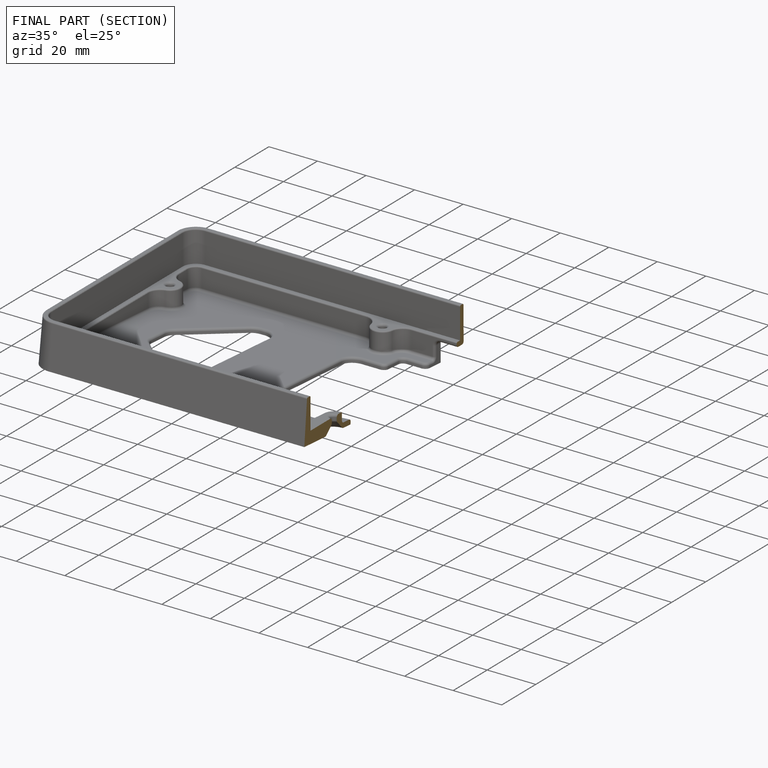
[diagram: finished part — half-section view (interior)]
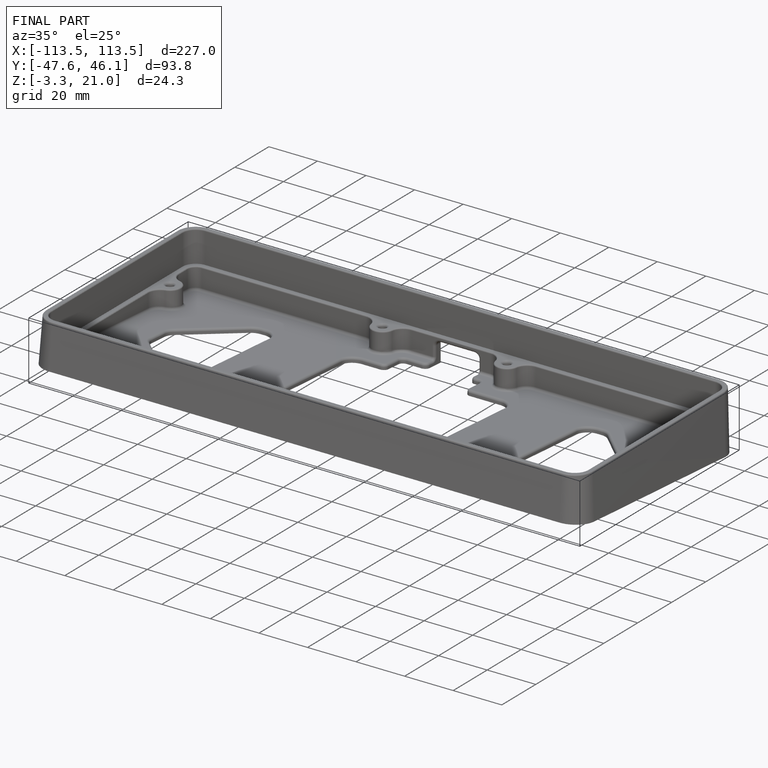
[diagram: finished part — iso view with bounding-box wireframe]
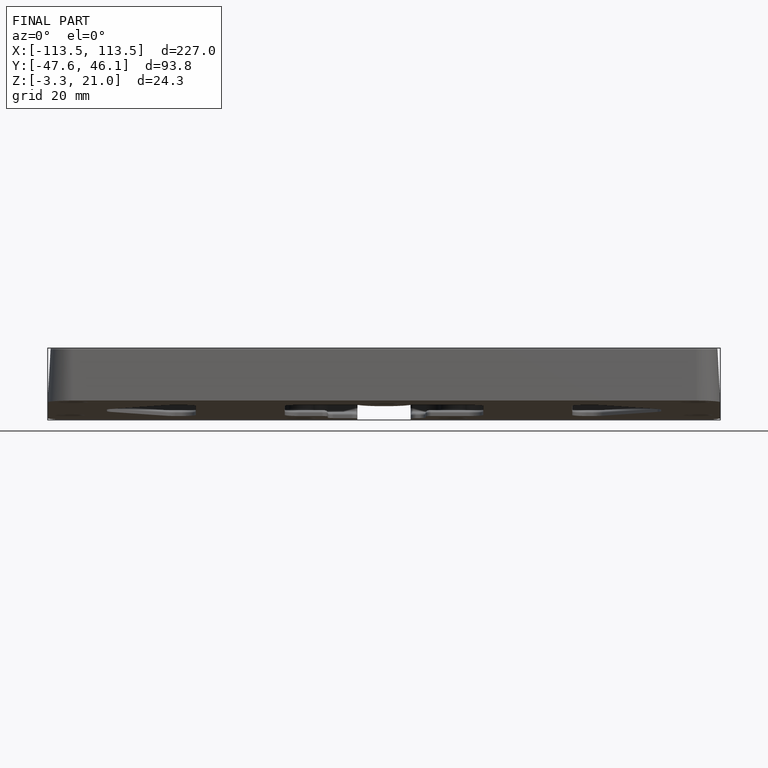
[diagram: finished part — front view with bounding-box wireframe]
